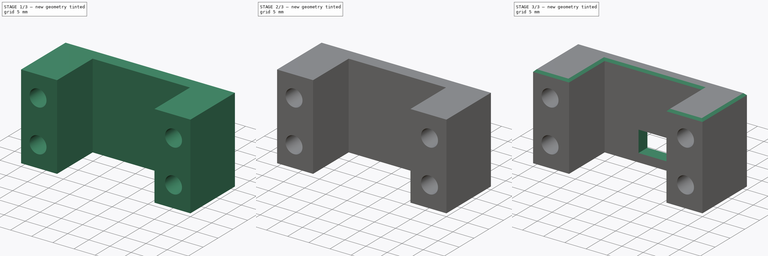
[diagram: build sequence overview — one tinted view per stage of 3, left to right]
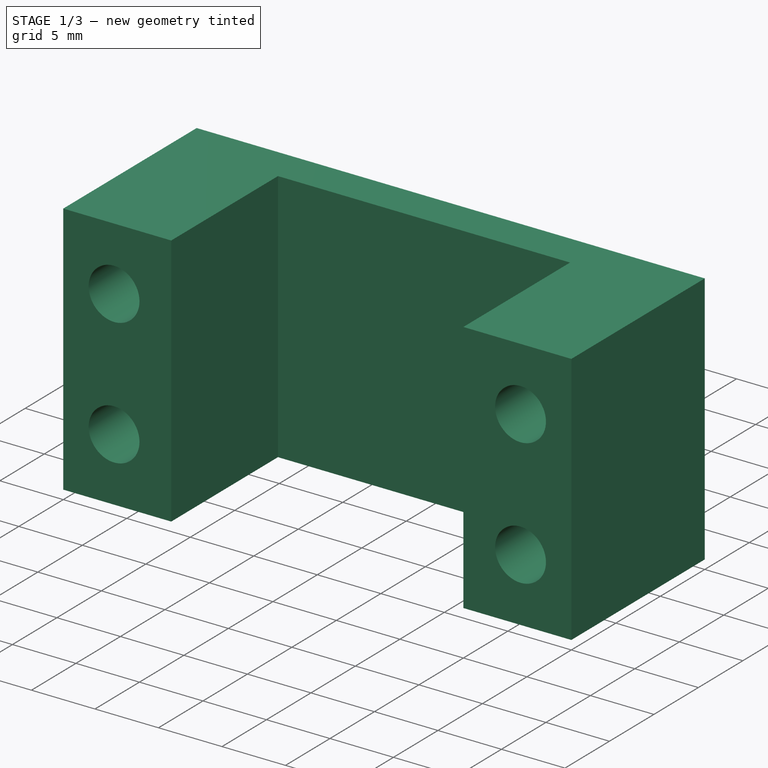
[diagram: stage 1 of 3 — iso view after this stage's code; geometry added in this stage tinted green]
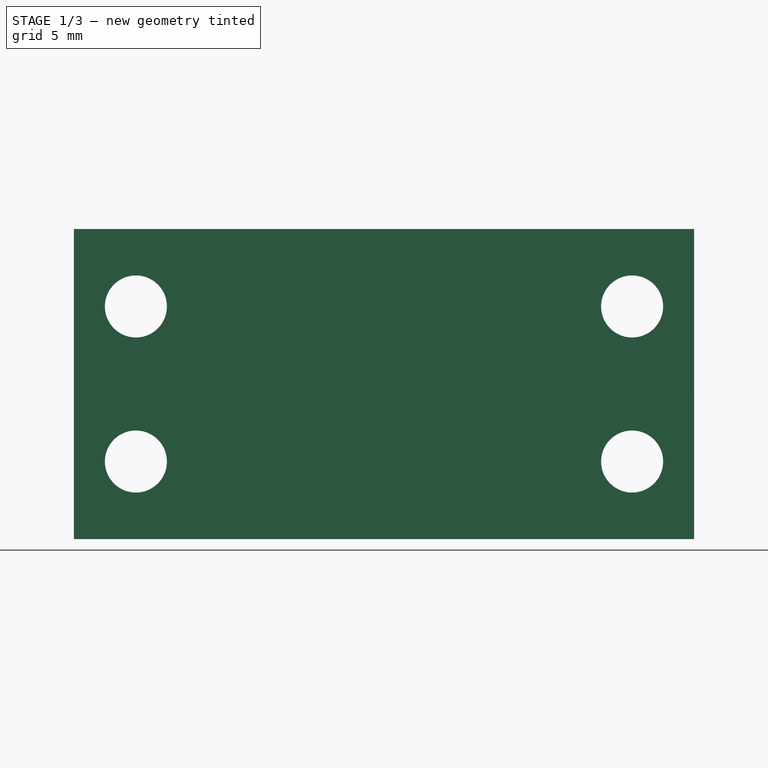
[diagram: stage 1 of 3 — front view after this stage's code; geometry added in this stage tinted green]
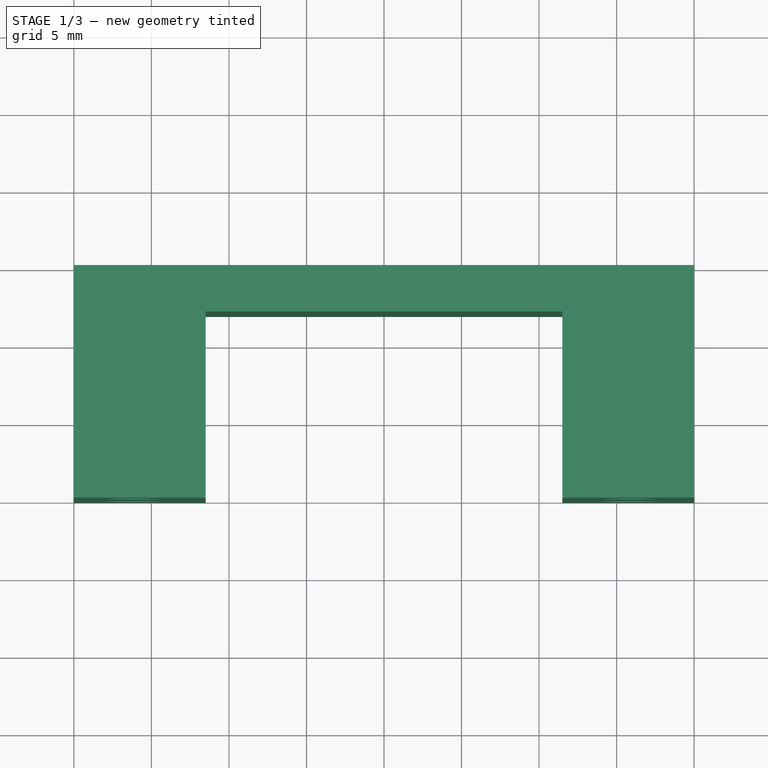
[diagram: stage 1 of 3 — top view after this stage's code; geometry added in this stage tinted green]
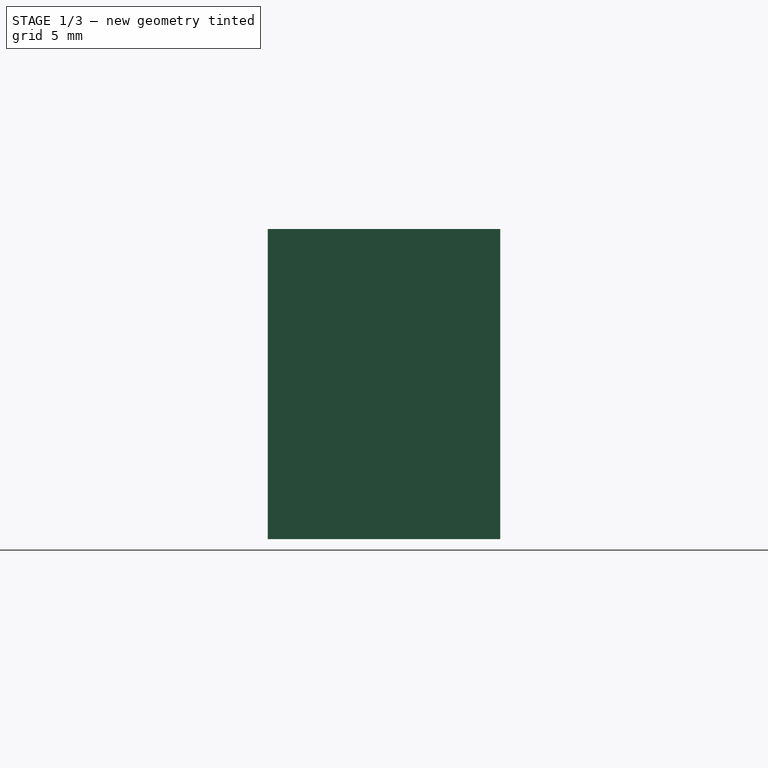
[diagram: stage 1 of 3 — right view after this stage's code; geometry added in this stage tinted green]
FCSTD DOCUMENT  (FreeCAD 0.18.4R)
Label: drive-motor-mount
License: All rights reserved
LicenseURL: http://en.wikipedia.org/wiki/All_rights_reserved
objects: Sketcher::SketchObject×4, PartDesign::Pocket×3, PartDesign::Pad×1, PartDesign::Plane×1, PartDesign::Chamfer×1, PartDesign::Body×1
note: 15 computed .brp shape members not serialized (recipe doc carries the construction recipe); baked Part::Feature solids carry a one-line shape summary decoded from their .brp

FEATURE [Sketcher::SketchObject] Sketch
  MapMode = 5
  Support = -> [XY_Plane]
  sketch-geometry (8):
    g0: LineSegment StartX=-20 StartY=0 StartZ=0 EndX=-20 EndY=15 EndZ=0
    g1: LineSegment StartX=-20 StartY=15 StartZ=0 EndX=20 EndY=15 EndZ=0
    g2: LineSegment StartX=20 StartY=15 StartZ=0 EndX=20 EndY=0 EndZ=0
    g3: LineSegment StartX=20 StartY=0 StartZ=0 EndX=11.5 EndY=0 EndZ=0
    g4: LineSegment StartX=11.5 StartY=0 StartZ=0 EndX=11.5 EndY=12 EndZ=0
    g5: LineSegment StartX=11.5 StartY=12 StartZ=0 EndX=-11.5 EndY=12 EndZ=0
    g6: LineSegment StartX=-11.5 StartY=12 StartZ=0 EndX=-11.5 EndY=0 EndZ=0
    g7: LineSegment StartX=-11.5 StartY=0 StartZ=0 EndX=-20 EndY=0 EndZ=0
  constraints (21):
    c: PointOnObject(g0,g-1)
    c: Vertical(g0)
    c: Coincident(g2,g3)
    c: PointOnObject(g3,g-1)
    c: Coincident(g3,g4)
    c: Vertical(g4)
    c: Coincident(g4,g5)
    c: Coincident(g5,g6)
    c: PointOnObject(g6,g-1)
    c: Vertical(g6)
    c: Coincident(g6,g7)
    c: Coincident(g7,g0)
    c: Symmetric(g5,g4,g-2)
    c: Symmetric(g1,g1,g-2)
    c: Symmetric(g0,g2,g-2)
    c: DistanceX(g5,g5) = 23
    c: DistanceY(g6,g6) = 12
    c: DistanceY(g-1,g1) = 15
    c: DistanceX(g0,g2) = 40
    c: Coincident(g0,g1)
    c: Coincident(g2,g1)
FEATURE [PartDesign::Pad] Pad
  Length = 10
  Length2 = 10
  Profile = -> Sketch
  Type = 4
FEATURE [Sketcher::SketchObject] Sketch001
  MapMode = 5
  Placement = pos=(0,0,0) rot=(1,0,0;1.5708rad)
  Support = -> [XZ_Plane]
  sketch-geometry (8):
    g0: LineSegment [constr] StartX=-16 StartY=5 StartZ=0 EndX=16 EndY=5 EndZ=0
    g1: LineSegment [constr] StartX=16 StartY=5 StartZ=0 EndX=16 EndY=-5 EndZ=0
    g2: LineSegment [constr] StartX=16 StartY=-5 StartZ=0 EndX=-16 EndY=-5 EndZ=0
    g3: LineSegment [constr] StartX=-16 StartY=-5 StartZ=0 EndX=-16 EndY=5 EndZ=0
    g4: Circle CenterX=-16 CenterY=5 CenterZ=0 NormalX=0 NormalY=0 NormalZ=1 AngleXU=0 Radius=2
    g5: Circle CenterX=-16 CenterY=-5 CenterZ=0 NormalX=0 NormalY=0 NormalZ=1 AngleXU=0 Radius=2
    g6: Circle CenterX=16 CenterY=-5 CenterZ=0 NormalX=0 NormalY=0 NormalZ=1 AngleXU=0 Radius=2
    g7: Circle CenterX=16 CenterY=5 CenterZ=0 NormalX=0 NormalY=0 NormalZ=1 AngleXU=0 Radius=2
  constraints (18):
    c: Coincident(g0,g1)
    c: Coincident(g1,g2)
    c: Coincident(g2,g3)
    c: Coincident(g3,g0)
    c: Horizontal(g2)
    c: Vertical(g1)
    c: Coincident(g5,g2)
    c: Coincident(g6,g1)
    c: Coincident(g7,g0)
    c: Symmetric(g4,g7,g-2)
    c: Coincident(g4,g0)
    c: Symmetric(g4,g5,g-1)
    c: DistanceY(g3,g3) = 10
    c: DistanceX(g0,g0) = 32
    c: Diameter(g4) = 4
    c: Diameter(g5) = 4
    c: Diameter(g7) = 4
    c: Diameter(g6) = 4
FEATURE [PartDesign::Pocket] Pocket
  BaseFeature = -> Pad
  Length = 20
  Length2 = 100
  Profile = -> Sketch001
  Type = 0
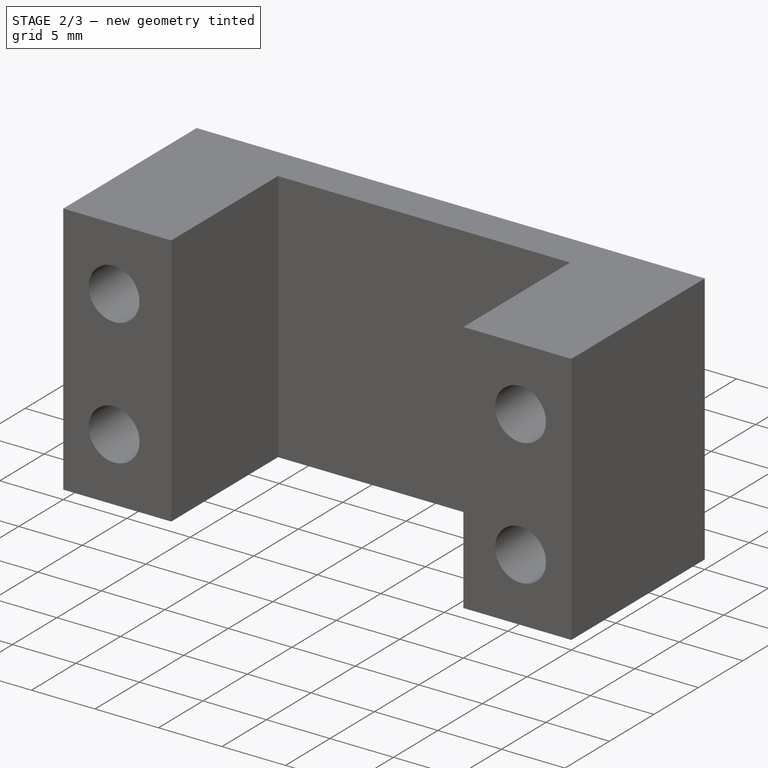
[diagram: stage 2 of 3 — iso view after this stage's code; geometry added in this stage tinted green]
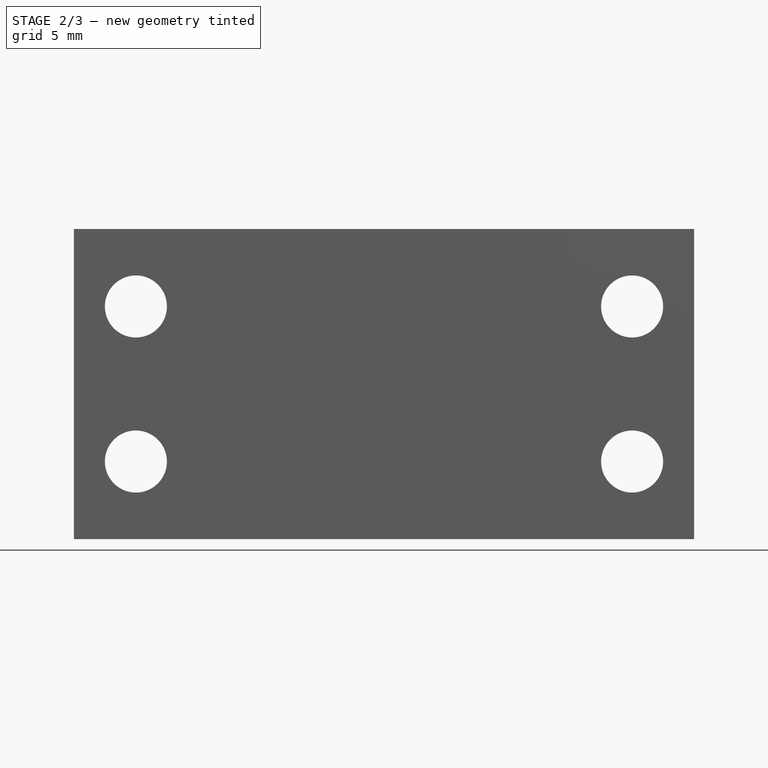
[diagram: stage 2 of 3 — front view after this stage's code; geometry added in this stage tinted green]
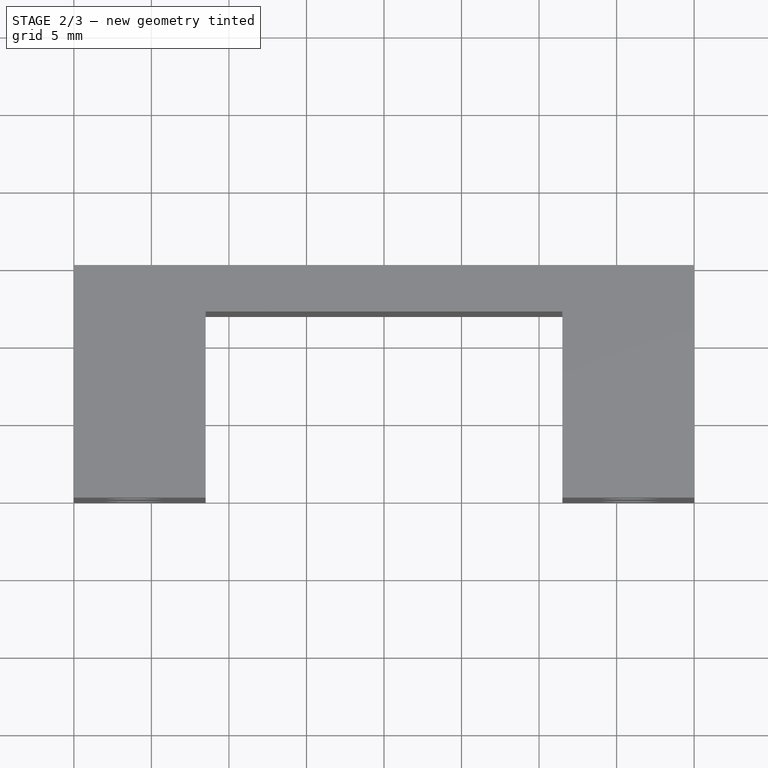
[diagram: stage 2 of 3 — top view after this stage's code; geometry added in this stage tinted green]
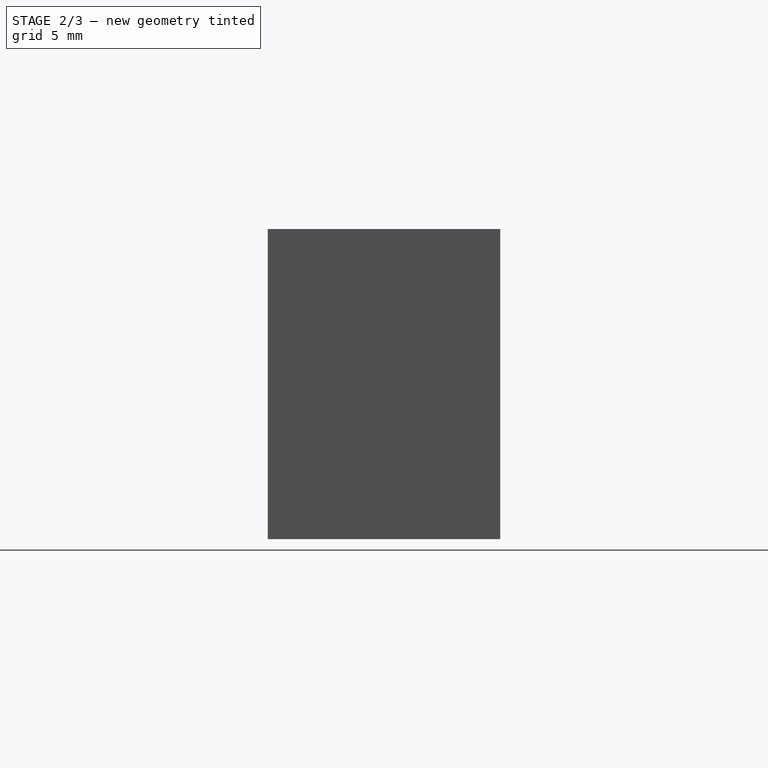
[diagram: stage 2 of 3 — right view after this stage's code; geometry added in this stage tinted green]
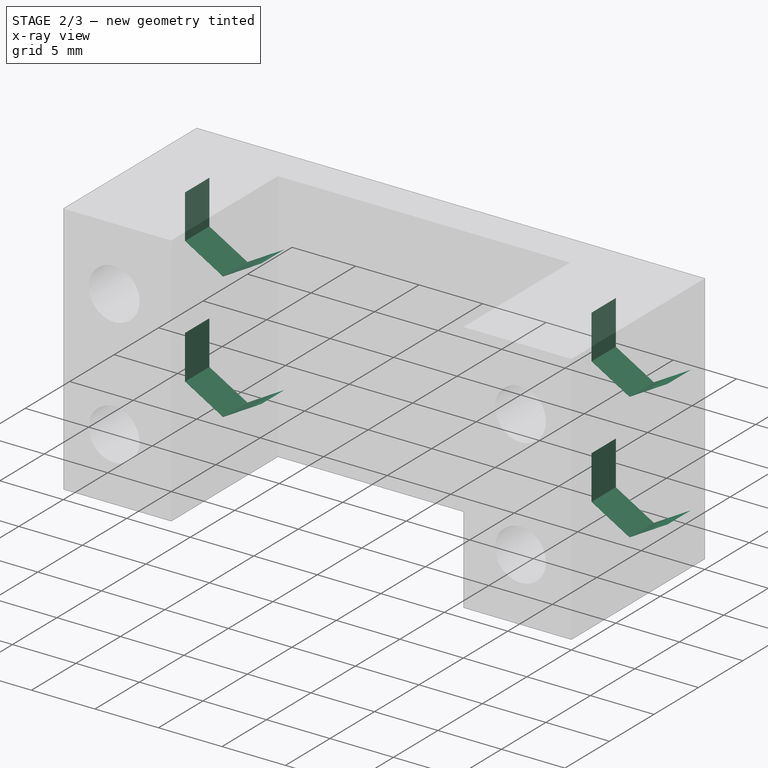
[diagram: stage 2 of 3 — x-ray composite at the iso view; earlier geometry ghosted, this stage's added geometry solid]
FEATURE [PartDesign::Plane] DatumPlane
  Length = 45.6569
  MapMode = 5
  Placement = pos=(0,15,0) rot=(0,0.707107,0.707107;3.14159rad)
  ResizeMode = 0
  Support = -> [Pocket]
  Width = 25.6569
FEATURE [Sketcher::SketchObject] Sketch002
  MapMode = 5
  Placement = pos=(0,15,0) rot=(0,0.707107,0.707107;3.14159rad)
  Support = -> [DatumPlane]
  sketch-geometry (32):
    g0: LineSegment StartX=-13 StartY=3.26795 StartZ=0 EndX=-13 EndY=6.73205 EndZ=0
    g1: LineSegment StartX=-13 StartY=6.73205 StartZ=0 EndX=-16 EndY=8.4641 EndZ=0
    g2: LineSegment StartX=-16 StartY=8.4641 StartZ=0 EndX=-19 EndY=6.73205 EndZ=0
    g3: LineSegment StartX=-19 StartY=6.73205 StartZ=0 EndX=-19 EndY=3.26795 EndZ=0
    g4: LineSegment StartX=-19 StartY=3.26795 StartZ=0 EndX=-16 EndY=1.5359 EndZ=0
    g5: LineSegment StartX=-16 StartY=1.5359 StartZ=0 EndX=-13 EndY=3.26795 EndZ=0
    g6: Circle [constr] CenterX=-16 CenterY=5 CenterZ=0 NormalX=0 NormalY=0 NormalZ=1 AngleXU=0 Radius=3.4641
    g7: LineSegment [constr] StartX=-16 StartY=5 StartZ=0 EndX=16 EndY=5 EndZ=0
    g8: LineSegment [constr] StartX=16 StartY=5 StartZ=0 EndX=16 EndY=-5 EndZ=0
    g9: LineSegment [constr] StartX=16 StartY=-5 StartZ=0 EndX=-16 EndY=-5 EndZ=0
    g10: LineSegment [constr] StartX=-16 StartY=-5 StartZ=0 EndX=-16 EndY=5 EndZ=0
    g11: LineSegment StartX=-13 StartY=-6.73205 StartZ=0 EndX=-13 EndY=-3.26795 EndZ=0
    g12: LineSegment StartX=-13 StartY=-3.26795 StartZ=0 EndX=-16 EndY=-1.5359 EndZ=0
    g13: LineSegment StartX=-16 StartY=-1.5359 StartZ=0 EndX=-19 EndY=-3.26795 EndZ=0
    g14: LineSegment StartX=-19 StartY=-3.26795 StartZ=0 EndX=-19 EndY=-6.73205 EndZ=0
    g15: LineSegment StartX=-19 StartY=-6.73205 StartZ=0 EndX=-16 EndY=-8.4641 EndZ=0
    g16: LineSegment StartX=-16 StartY=-8.4641 StartZ=0 EndX=-13 EndY=-6.73205 EndZ=0
    g17: Circle [constr] CenterX=-16 CenterY=-5 CenterZ=0 NormalX=0 NormalY=0 NormalZ=1 AngleXU=0 Radius=3.4641
    g18: LineSegment StartX=19 StartY=-6.73205 StartZ=0 EndX=19 EndY=-3.26795 EndZ=0
    g19: LineSegment StartX=19 StartY=-3.26795 StartZ=0 EndX=16 EndY=-1.5359 EndZ=0
    g20: LineSegment StartX=16 StartY=-1.5359 StartZ=0 EndX=13 EndY=-3.26795 EndZ=0
    g21: LineSegment StartX=13 StartY=-3.26795 StartZ=0 EndX=13 EndY=-6.73205 EndZ=0
    g22: LineSegment StartX=13 StartY=-6.73205 StartZ=0 EndX=16 EndY=-8.4641 EndZ=0
    g23: LineSegment StartX=16 StartY=-8.4641 StartZ=0 EndX=19 EndY=-6.73205 EndZ=0
    g24: Circle [constr] CenterX=16 CenterY=-5 CenterZ=0 NormalX=0 NormalY=0 NormalZ=1 AngleXU=0 Radius=3.4641
    g25: LineSegment StartX=19 StartY=3.26795 StartZ=0 EndX=19 EndY=6.73205 EndZ=0
    g26: LineSegment StartX=19 StartY=6.73205 StartZ=0 EndX=16 EndY=8.4641 EndZ=0
    g27: LineSegment StartX=16 StartY=8.4641 StartZ=0 EndX=13 EndY=6.73205 EndZ=0
    g28: LineSegment StartX=13 StartY=6.73205 StartZ=0 EndX=13 EndY=3.26795 EndZ=0
    g29: LineSegment StartX=13 StartY=3.26795 StartZ=0 EndX=16 EndY=1.5359 EndZ=0
    g30: LineSegment StartX=16 StartY=1.5359 StartZ=0 EndX=19 EndY=3.26795 EndZ=0
    g31: Circle [constr] CenterX=16 CenterY=5 CenterZ=0 NormalX=0 NormalY=0 NormalZ=1 AngleXU=0 Radius=3.4641
  constraints (74):
    c: Coincident(g0,g1)
    c: Coincident(g1,g2)
    c: Coincident(g2,g3)
    c: Coincident(g3,g4)
    c: Coincident(g4,g5)
    c: Coincident(g5,g0)
    c: Equal(g0, g1-g5) x5
    c: PointOnObject(g0,g6)
    c: PointOnObject(g1,g6)
    c: PointOnObject(g2,g6)
    c: PointOnObject(g3,g6)
    c: PointOnObject(g4,g6)
    c: PointOnObject(g5,g6)
    c: Vertical(g3)
    c: DistanceX(g2,g0) = 6
    c: Coincident(g7,g8)
    c: Coincident(g8,g9)
    c: Coincident(g9,g10)
    c: Coincident(g10,g7)
    c: Horizontal(g9)
    c: Vertical(g8)
    c: Coincident(g7,g6)
    c: Symmetric(g6,g7,g-2)
    c: Symmetric(g6,g9,g-1)
    c: DistanceX(g9,g9) = 32
    c: DistanceY(g10,g10) = 10
    c: Coincident(g11,g12)
    c: Coincident(g12,g13)
    c: Coincident(g13,g14)
    c: Coincident(g14,g15)
    c: Coincident(g15,g16)
    c: Coincident(g16,g11)
    c: Equal(g11, g12-g16) x5
    c: PointOnObject(g11,g17)
    c: PointOnObject(g12,g17)
    c: PointOnObject(g13,g17)
    c: PointOnObject(g14,g17)
    c: PointOnObject(g15,g17)
    c: PointOnObject(g16,g17)
    c: Coincident(g17,g9)
    c: Coincident(g18,g19)
    c: Coincident(g19,g20)
    c: Coincident(g20,g21)
    c: Coincident(g21,g22)
    c: Coincident(g22,g23)
    c: Coincident(g23,g18)
    c: Equal(g18, g19-g23) x5
    c: PointOnObject(g18,g24)
    c: PointOnObject(g19,g24)
    c: PointOnObject(g20,g24)
    c: PointOnObject(g21,g24)
    c: PointOnObject(g22,g24)
    c: PointOnObject(g23,g24)
    c: Coincident(g24,g8)
    c: Coincident(g25,g26)
    c: Coincident(g26,g27)
    c: Coincident(g27,g28)
    c: Coincident(g28,g29)
    c: Coincident(g29,g30)
    c: Coincident(g30,g25)
    c: Equal(g25, g26-g30) x5
    c: PointOnObject(g25,g31)
    c: PointOnObject(g26,g31)
    c: PointOnObject(g27,g31)
    c: PointOnObject(g28,g31)
    c: PointOnObject(g29,g31)
    c: PointOnObject(g30,g31)
    c: Coincident(g31,g7)
    c: Vertical(g14)
    c: Vertical(g28)
    c: Vertical(g21)
    c: DistanceX(g13,g11) = 6
    c: DistanceX(g27,g25) = 6
    c: DistanceX(g20,g18) = 6
FEATURE [PartDesign::Pocket] Pocket001
  BaseFeature = -> Pocket
  Length = 2.75
  Length2 = 100
  Profile = -> Sketch002
  Type = 0
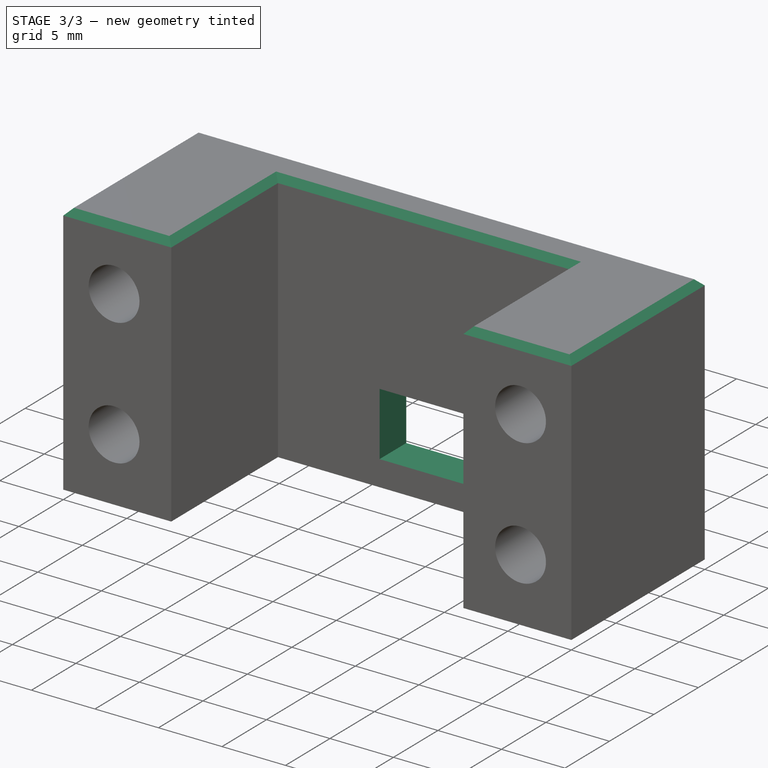
[diagram: stage 3 of 3 — iso view after this stage's code; geometry added in this stage tinted green]
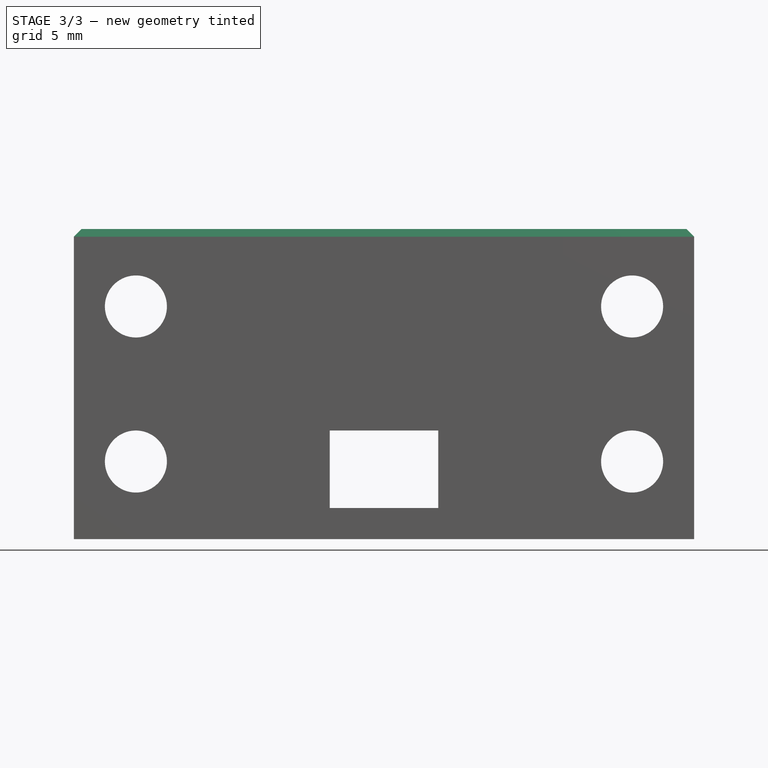
[diagram: stage 3 of 3 — front view after this stage's code; geometry added in this stage tinted green]
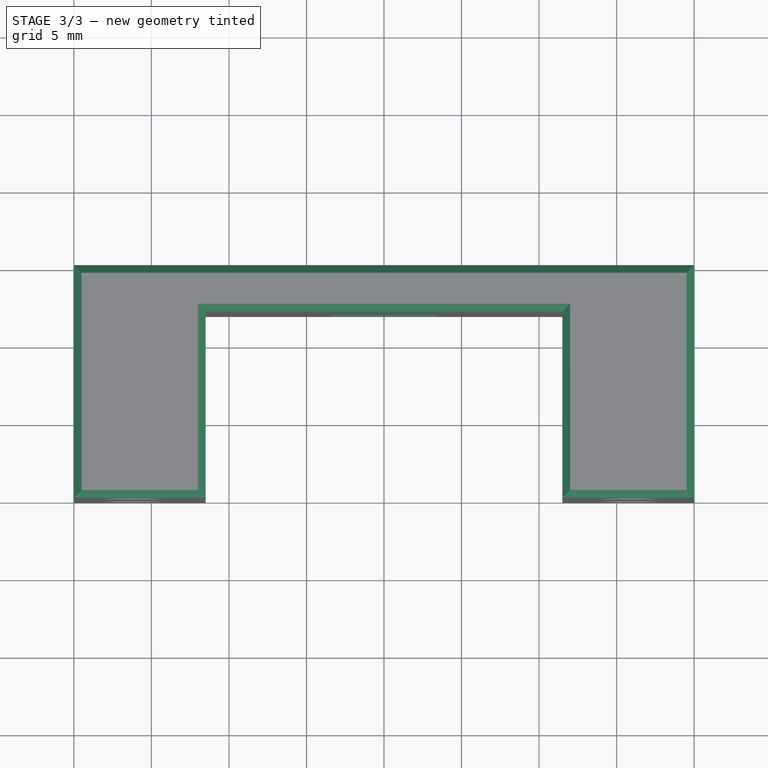
[diagram: stage 3 of 3 — top view after this stage's code; geometry added in this stage tinted green]
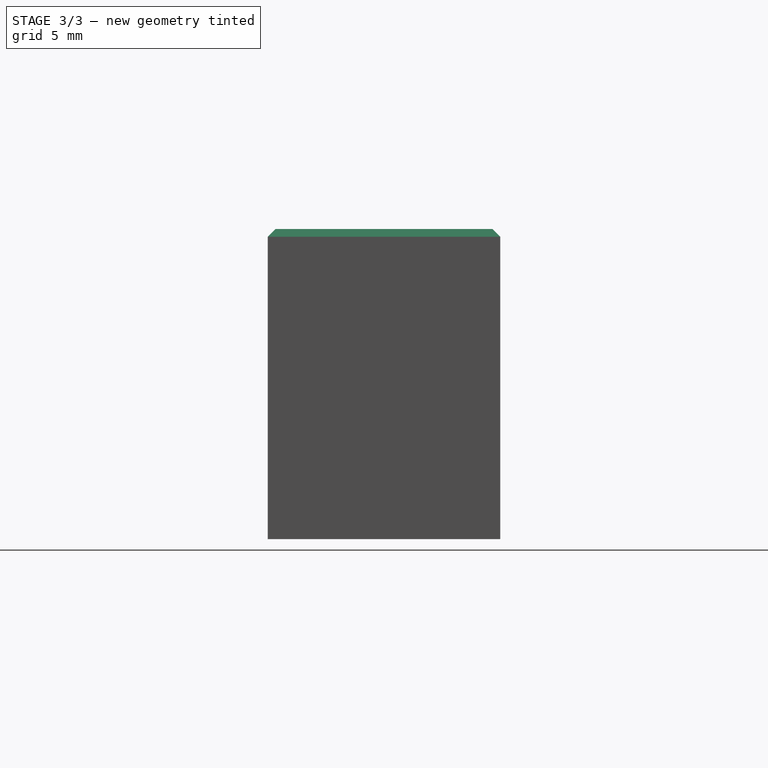
[diagram: stage 3 of 3 — right view after this stage's code; geometry added in this stage tinted green]
FEATURE [Sketcher::SketchObject] Sketch003
  MapMode = 5
  Placement = pos=(0,15,0) rot=(0,0.707107,0.707107;3.14159rad)
  Support = -> [DatumPlane]
  sketch-geometry (4):
    g0: LineSegment StartX=-3.5 StartY=-3 StartZ=0 EndX=3.5 EndY=-3 EndZ=0
    g1: LineSegment StartX=3.5 StartY=-3 StartZ=0 EndX=3.5 EndY=-8 EndZ=0
    g2: LineSegment StartX=3.5 StartY=-8 StartZ=0 EndX=-3.5 EndY=-8 EndZ=0
    g3: LineSegment StartX=-3.5 StartY=-8 StartZ=0 EndX=-3.5 EndY=-3 EndZ=0
  constraints (11):
    c: Coincident(g0,g1)
    c: Coincident(g1,g2)
    c: Coincident(g2,g3)
    c: Coincident(g3,g0)
    c: Horizontal(g2)
    c: Vertical(g1)
    c: Vertical(g3)
    c: Symmetric(g0,g0,g-2)
    c: DistanceY(g3,g3) = 5
    c: DistanceX(g0,g0) = 7
    c: DistanceY(g0,g-1) = 3
FEATURE [PartDesign::Pocket] Pocket002
  BaseFeature = -> Pocket001
  Length = 5
  Length2 = 100
  Profile = -> Sketch003
  Type = 0
FEATURE [PartDesign::Chamfer] Chamfer
  Base = -> Pocket002 [Edge48,Edge47,Edge46,Edge11,Edge49,Edge50,Edge7,Edge4]
  BaseFeature = -> Pocket002
  Size = 0.5
FEATURE [PartDesign::Body] Body
  Group = -> [Sketch,Pad,Sketch001,Pocket,DatumPlane,Sketch002,Pocket001,Sketch003,Pocket002,Chamfer]
  Origin = -> Origin
  Tip = -> Chamfer
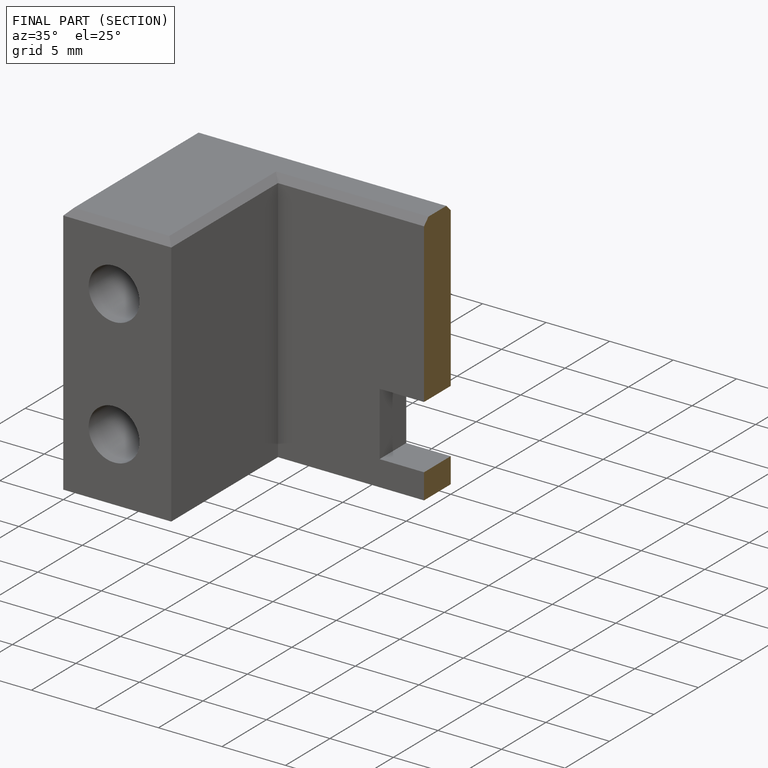
[diagram: finished part — half-section view (interior)]
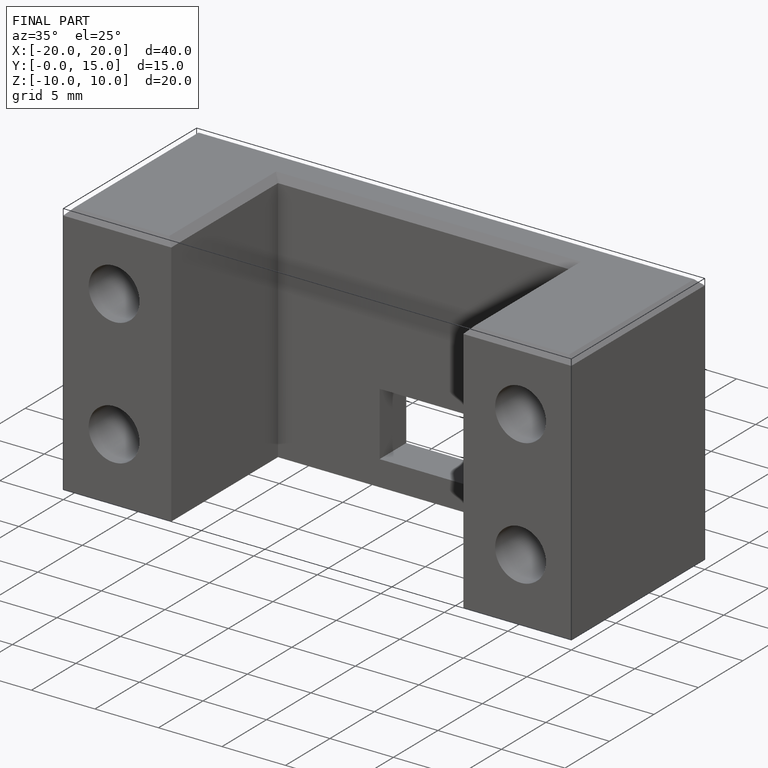
[diagram: finished part — iso view with bounding-box wireframe]
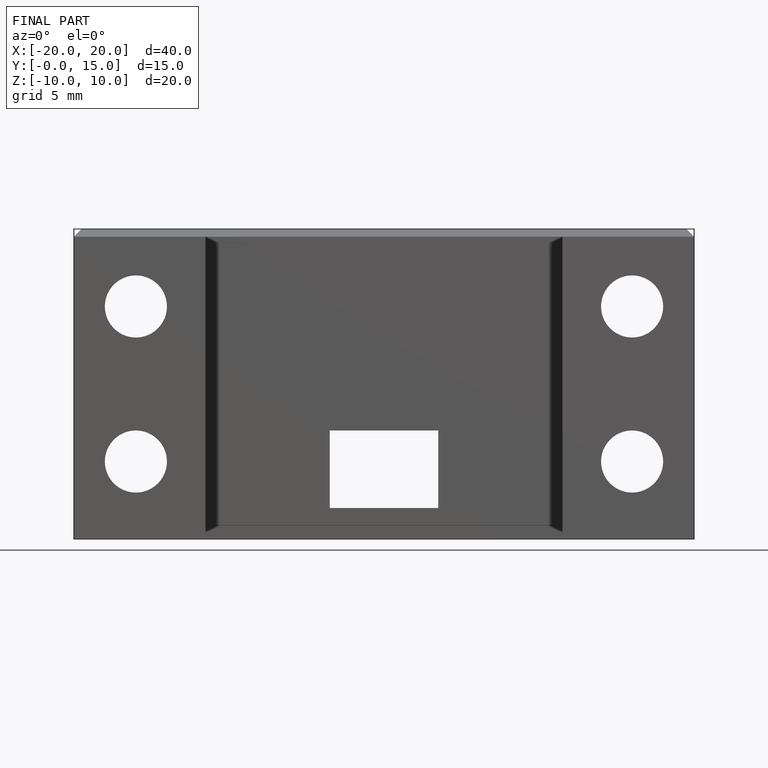
[diagram: finished part — front view with bounding-box wireframe]
